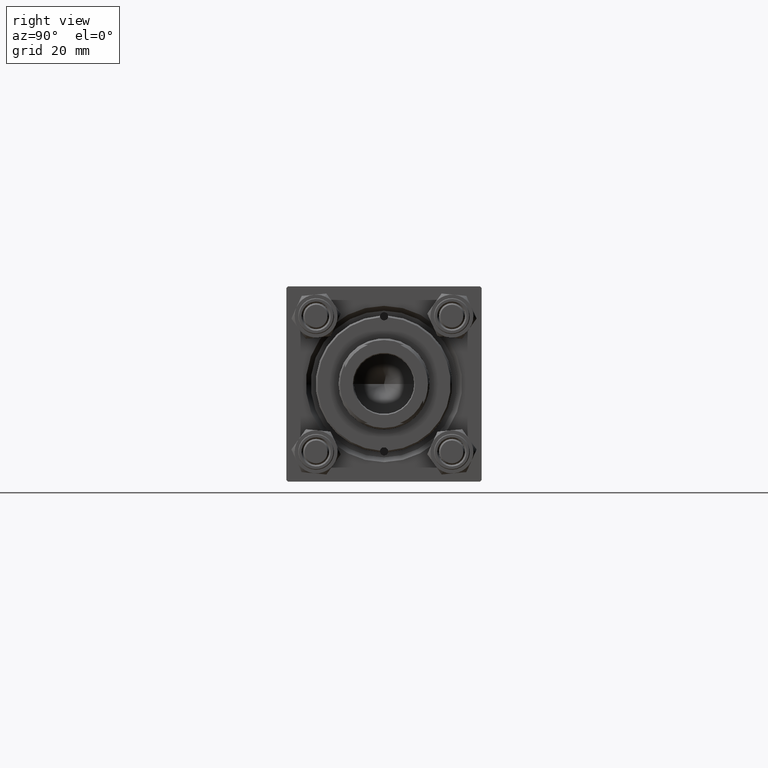
[diagram: clean part render]
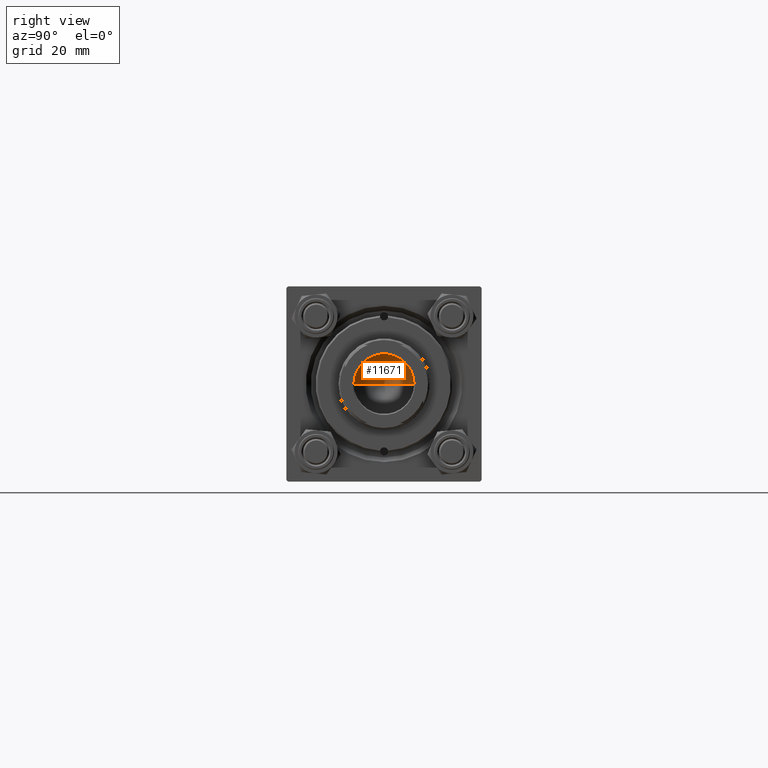
[diagram: same view with one face highlighted and labeled with its STEP entity id]
A machine part, right view. The second image highlights one B-rep face of the part: STEP entity #11671.
In plain terms, the highlighted conical surface has half-angle 59 deg.
Its self-contained STEP definition (entity closure, byte-faithful):
#1462 = ORIENTED_EDGE ( 'NONE', *, *, #10103, .F. ) ;
#3588 = LINE ( 'NONE', #30190, #7817 ) ;
#3775 = VERTEX_POINT ( 'NONE', #19867 ) ;
#6126 = LINE ( 'NONE', #44383, #35797 ) ;
#7052 = CONICAL_SURFACE ( 'NONE', #24036, 9.249999999999992895, 1.029744258676653423 ) ;
#7817 = VECTOR ( 'NONE', #38285, 1000.000000000000000 ) ;
#8479 = VERTEX_POINT ( 'NONE', #21358 ) ;
#9885 = DIRECTION ( 'NONE',  ( 1.000000000000000000, 0.000000000000000000, 0.000000000000000000 ) ) ;
#10103 = EDGE_CURVE ( 'NONE', #3775, #8479, #3588, .T. ) ;
#11609 = EDGE_CURVE ( 'NONE', #47692, #8479, #28053, .T. ) ;
#11671 = ADVANCED_FACE ( 'NONE', ( #32384 ), #7052, .F. ) ;
#16806 = ORIENTED_EDGE ( 'NONE', *, *, #29488, .T. ) ;
#19162 = AXIS2_PLACEMENT_3D ( 'NONE', #44577, #22269, #9885 ) ;
#19867 = CARTESIAN_POINT ( 'NONE',  ( -9.769621978240258809E-15, 0.000000000000000000, 95.44203927399506426 ) ) ;
#21358 = CARTESIAN_POINT ( 'NONE',  ( 9.249999999999992895, 0.000000000000000000, 101.0000000000000000 ) ) ;
#22269 = DIRECTION ( 'NONE',  ( -0.000000000000000000, -0.000000000000000000, 1.000000000000000000 ) ) ;
#24019 = DIRECTION ( 'NONE',  ( -0.000000000000000000, -0.000000000000000000, 1.000000000000000000 ) ) ;
#24036 = AXIS2_PLACEMENT_3D ( 'NONE', #24524, #24019, #39728 ) ;
#24524 = CARTESIAN_POINT ( 'NONE',  ( 0.000000000000000000, 0.000000000000000000, 101.0000000000000000 ) ) ;
#27837 = EDGE_LOOP ( 'NONE', ( #1462, #16806, #35853 ) ) ;
#28053 = CIRCLE ( 'NONE', #19162, 9.249999999999992895 ) ;
#29488 = EDGE_CURVE ( 'NONE', #3775, #47692, #6126, .T. ) ;
#30190 = CARTESIAN_POINT ( 'NONE',  ( 9.249999999999992895, 0.000000000000000000, 101.0000000000000000 ) ) ;
#32384 = FACE_OUTER_BOUND ( 'NONE', #27837, .T. ) ;
#35797 = VECTOR ( 'NONE', #40330, 1000.000000000000000 ) ;
#35853 = ORIENTED_EDGE ( 'NONE', *, *, #11609, .T. ) ;
#38285 = DIRECTION ( 'NONE',  ( 0.8571673007021117785, 0.000000000000000000, 0.5150380749100550437 ) ) ;
#39728 = DIRECTION ( 'NONE',  ( 1.000000000000000000, 0.000000000000000000, 0.000000000000000000 ) ) ;
#40330 = DIRECTION ( 'NONE',  ( -0.8571673007021117785, 1.049727191138617956E-16, 0.5150380749100550437 ) ) ;
#44383 = CARTESIAN_POINT ( 'NONE',  ( -9.249999999999992895, 1.132798289211300712E-15, 101.0000000000000000 ) ) ;
#44577 = CARTESIAN_POINT ( 'NONE',  ( 0.000000000000000000, 0.000000000000000000, 101.0000000000000000 ) ) ;
#47692 = VERTEX_POINT ( 'NONE', #50122 ) ;
#50122 = CARTESIAN_POINT ( 'NONE',  ( -9.249999999999992895, 1.132798289211300712E-15, 101.0000000000000000 ) ) ;